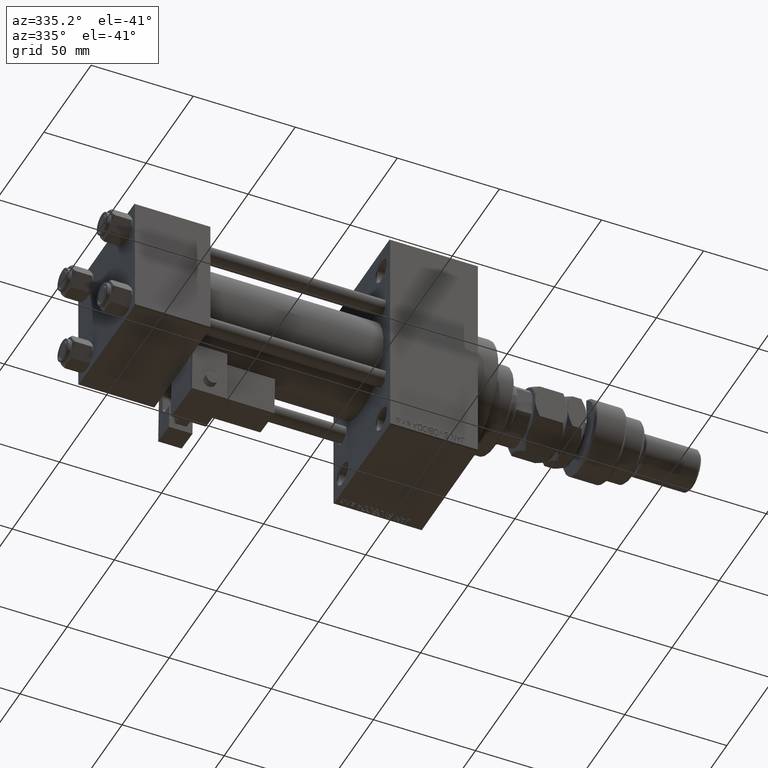
[diagram: clean part render]
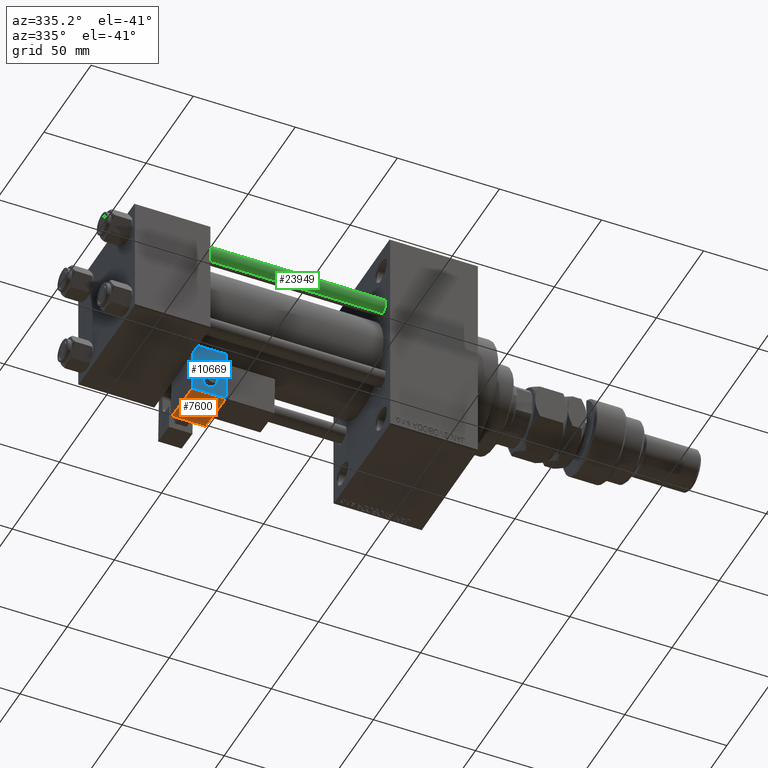
[diagram: same view with three faces highlighted in distinct colors, each labeled with its STEP entity id]
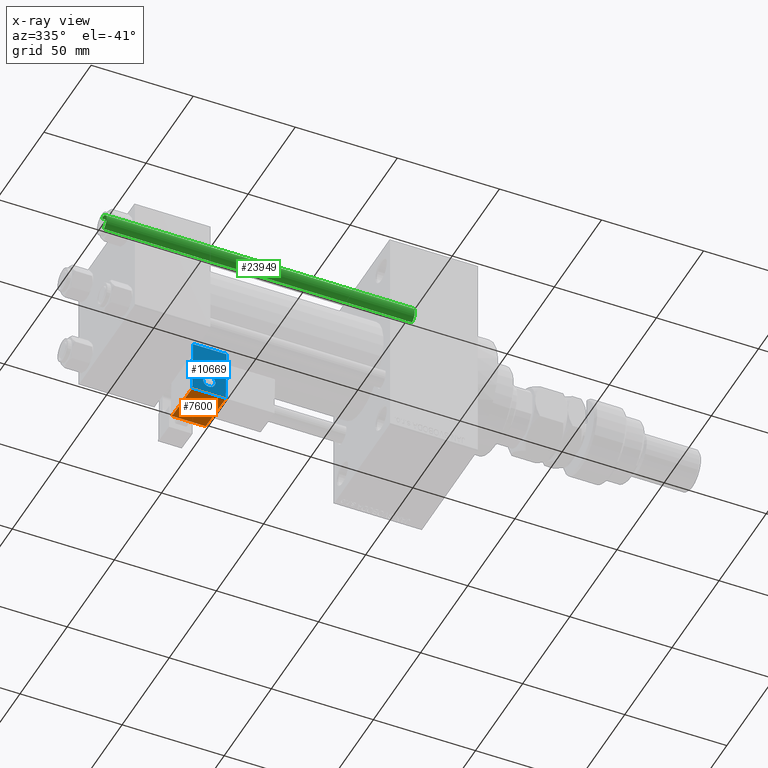
[diagram: x-ray of the same camera — body ghosted, the three highlighted faces saturated]
A machine part, auxiliary view with three faces highlighted in distinct colors.
The next image is the same camera in x-ray (body ghosted, the three faces saturated) — at least one of them is partly hidden behind the body in this view.
Their STEP definitions:

[orange] entity #7600 — the highlighted planar face has unit normal (0, -0.0353, 0.9994).
#1570 = CARTESIAN_POINT ( 'NONE',  ( 8.750000000000003553, -35.75000000000000000, -1.000000000000000222 ) ) ;
#2412 = DIRECTION ( 'NONE',  ( -1.000000000000000000, -0.000000000000000000, 0.000000000000000000 ) ) ;
#7600 = ADVANCED_FACE ( 'NONE', ( #22303 ), #47958, .F. ) ;
#7675 = VERTEX_POINT ( 'NONE', #35253 ) ;
#11437 = CARTESIAN_POINT ( 'NONE',  ( 8.750000000000003553, -14.24999999999999822, -1.000000000000000222 ) ) ;
#12633 = VECTOR ( 'NONE', #31619, 1000.000000000000000 ) ;
#13449 = DIRECTION ( 'NONE',  ( 0.000000000000000000, 0.000000000000000000, 1.000000000000000000 ) ) ;
#13723 = DIRECTION ( 'NONE',  ( 1.000000000000000000, 0.000000000000000000, -0.000000000000000000 ) ) ;
#16734 = VERTEX_POINT ( 'NONE', #24431 ) ;
#19294 = VECTOR ( 'NONE', #41111, 1000.000000000000000 ) ;
#22303 = FACE_OUTER_BOUND ( 'NONE', #46176, .T. ) ;
#22335 = LINE ( 'NONE', #11437, #34475 ) ;
#22376 = CARTESIAN_POINT ( 'NONE',  ( 8.250000000000003553, -14.24999999999999822, -1.000000000000000222 ) ) ;
#23070 = EDGE_CURVE ( 'NONE', #7675, #23619, #49366, .T. ) ;
#23238 = ORIENTED_EDGE ( 'NONE', *, *, #46776, .T. ) ;
#23619 = VERTEX_POINT ( 'NONE', #26828 ) ;
#24431 = CARTESIAN_POINT ( 'NONE',  ( -8.250000000000003553, -14.24999999999999822, -1.000000000000000222 ) ) ;
#26828 = CARTESIAN_POINT ( 'NONE',  ( -8.250000000000003553, -35.25000000000000000, -1.000000000000000222 ) ) ;
#26934 = LINE ( 'NONE', #52614, #12633 ) ;
#27102 = ORIENTED_EDGE ( 'NONE', *, *, #23070, .T. ) ;
#28665 = CARTESIAN_POINT ( 'NONE',  ( -8.250000000000003553, -35.75000000000000000, -1.000000000000000222 ) ) ;
#28792 = ORIENTED_EDGE ( 'NONE', *, *, #54589, .T. ) ;
#30874 = DIRECTION ( 'NONE',  ( 1.000000000000000000, -0.000000000000000000, 0.000000000000000000 ) ) ;
#31619 = DIRECTION ( 'NONE',  ( -0.000000000000000000, -1.000000000000000000, -0.000000000000000000 ) ) ;
#32216 = VERTEX_POINT ( 'NONE', #22376 ) ;
#34475 = VECTOR ( 'NONE', #30874, 1000.000000000000000 ) ;
#35253 = CARTESIAN_POINT ( 'NONE',  ( 8.250000000000003553, -35.25000000000000000, -1.000000000000000222 ) ) ;
#37518 = LINE ( 'NONE', #28665, #19294 ) ;
#39946 = EDGE_CURVE ( 'NONE', #23619, #16734, #37518, .T. ) ;
#41111 = DIRECTION ( 'NONE',  ( -0.000000000000000000, 1.000000000000000000, 0.000000000000000000 ) ) ;
#44407 = CARTESIAN_POINT ( 'NONE',  ( 8.750000000000003553, -35.25000000000000000, -1.000000000000000222 ) ) ;
#44744 = VECTOR ( 'NONE', #2412, 1000.000000000000000 ) ;
#46176 = EDGE_LOOP ( 'NONE', ( #23238, #28792, #27102, #53325 ) ) ;
#46776 = EDGE_CURVE ( 'NONE', #16734, #32216, #22335, .T. ) ;
#47958 = PLANE ( 'NONE',  #53799 ) ;
#49366 = LINE ( 'NONE', #44407, #44744 ) ;
#52614 = CARTESIAN_POINT ( 'NONE',  ( 8.250000000000003553, -35.75000000000000000, -1.000000000000000222 ) ) ;
#53325 = ORIENTED_EDGE ( 'NONE', *, *, #39946, .T. ) ;
#53799 = AXIS2_PLACEMENT_3D ( 'NONE', #1570, #13449, #13723 ) ;
#54589 = EDGE_CURVE ( 'NONE', #32216, #7675, #26934, .T. ) ;

[blue] entity #10669 — the highlighted planar face has unit normal (0, 0.9994, 0.0353).
#502 = EDGE_CURVE ( 'NONE', #35064, #4553, #44780, .T. ) ;
#658 = DIRECTION ( 'NONE',  ( 0.000000000000000000, 0.000000000000000000, 1.000000000000000000 ) ) ;
#1210 = CARTESIAN_POINT ( 'NONE',  ( -4.336808689942017736E-16, -35.75000000000000000, 6.000000000000001776 ) ) ;
#1311 = AXIS2_PLACEMENT_3D ( 'NONE', #48183, #52889, #27475 ) ;
#2476 = DIRECTION ( 'NONE',  ( -1.000000000000000000, 0.000000000000000000, 1.982541115402065110E-16 ) ) ;
#2621 = VECTOR ( 'NONE', #2476, 1000.000000000000000 ) ;
#3100 = LINE ( 'NONE', #24656, #7968 ) ;
#3782 = AXIS2_PLACEMENT_3D ( 'NONE', #6642, #15213, #36465 ) ;
#4504 = EDGE_CURVE ( 'NONE', #24763, #34425, #5803, .T. ) ;
#4553 = VERTEX_POINT ( 'NONE', #7691 ) ;
#5803 = LINE ( 'NONE', #14919, #2621 ) ;
#6036 = EDGE_CURVE ( 'NONE', #34425, #24817, #3100, .T. ) ;
#6270 = DIRECTION ( 'NONE',  ( -1.334402673828313339E-16, 0.000000000000000000, 1.000000000000000000 ) ) ;
#6642 = CARTESIAN_POINT ( 'NONE',  ( 0.000000000000000000, -35.75000000000000000, 0.000000000000000000 ) ) ;
#7691 = CARTESIAN_POINT ( 'NONE',  ( -6.628682924999581145E-17, -35.75000000000000000, 3.000000000000001776 ) ) ;
#7968 = VECTOR ( 'NONE', #41497, 1000.000000000000000 ) ;
#9237 = ORIENTED_EDGE ( 'NONE', *, *, #27266, .T. ) ;
#9508 = VECTOR ( 'NONE', #48296, 1000.000000000000000 ) ;
#9643 = CARTESIAN_POINT ( 'NONE',  ( 0.000000000000000000, -35.75000000000000000, -0.5000000000000002220 ) ) ;
#10669 = ADVANCED_FACE ( 'NONE', ( #19644, #44216 ), #39530, .F. ) ;
#11061 = ORIENTED_EDGE ( 'NONE', *, *, #49687, .T. ) ;
#11280 = EDGE_LOOP ( 'NONE', ( #37640, #18785 ) ) ;
#14919 = CARTESIAN_POINT ( 'NONE',  ( 4.857225732735059864E-15, -35.75000000000000000, 24.50000000000000000 ) ) ;
#15213 = DIRECTION ( 'NONE',  ( 0.000000000000000000, 1.000000000000000000, 0.000000000000000000 ) ) ;
#16658 = EDGE_CURVE ( 'NONE', #4553, #35064, #37462, .T. ) ;
#17798 = DIRECTION ( 'NONE',  ( -0.000000000000000000, -1.000000000000000000, -0.000000000000000000 ) ) ;
#18785 = ORIENTED_EDGE ( 'NONE', *, *, #16658, .F. ) ;
#19054 = VERTEX_POINT ( 'NONE', #52812 ) ;
#19644 = FACE_OUTER_BOUND ( 'NONE', #45760, .T. ) ;
#24656 = CARTESIAN_POINT ( 'NONE',  ( -8.250000000000003553, -35.75000000000000000, 1.100882205908358788E-15 ) ) ;
#24763 = VERTEX_POINT ( 'NONE', #47385 ) ;
#24817 = VERTEX_POINT ( 'NONE', #32432 ) ;
#27266 = EDGE_CURVE ( 'NONE', #24817, #19054, #47485, .T. ) ;
#27475 = DIRECTION ( 'NONE',  ( 0.000000000000000000, 0.000000000000000000, 1.000000000000000000 ) ) ;
#28905 = AXIS2_PLACEMENT_3D ( 'NONE', #1210, #17798, #658 ) ;
#32432 = CARTESIAN_POINT ( 'NONE',  ( -8.250000000000003553, -35.75000000000000000, -0.5000000000000002220 ) ) ;
#32480 = LINE ( 'NONE', #39973, #33686 ) ;
#33217 = CARTESIAN_POINT ( 'NONE',  ( -4.336808689942017736E-16, -35.75000000000000000, 9.000000000000001776 ) ) ;
#33686 = VECTOR ( 'NONE', #6270, 1000.000000000000000 ) ;
#34425 = VERTEX_POINT ( 'NONE', #49109 ) ;
#35064 = VERTEX_POINT ( 'NONE', #33217 ) ;
#36465 = DIRECTION ( 'NONE',  ( 0.000000000000000000, -0.000000000000000000, 1.000000000000000000 ) ) ;
#37462 = CIRCLE ( 'NONE', #1311, 2.999999999999999112 ) ;
#37640 = ORIENTED_EDGE ( 'NONE', *, *, #502, .F. ) ;
#37834 = ORIENTED_EDGE ( 'NONE', *, *, #6036, .T. ) ;
#39530 = PLANE ( 'NONE',  #3782 ) ;
#39973 = CARTESIAN_POINT ( 'NONE',  ( 8.250000000000003553, -35.75000000000000000, 1.100882205908358986E-15 ) ) ;
#41497 = DIRECTION ( 'NONE',  ( -1.334402673828313093E-16, 0.000000000000000000, -1.000000000000000000 ) ) ;
#43484 = ORIENTED_EDGE ( 'NONE', *, *, #4504, .T. ) ;
#44216 = FACE_BOUND ( 'NONE', #11280, .T. ) ;
#44780 = CIRCLE ( 'NONE', #28905, 2.999999999999999112 ) ;
#45760 = EDGE_LOOP ( 'NONE', ( #43484, #37834, #9237, #11061 ) ) ;
#47385 = CARTESIAN_POINT ( 'NONE',  ( 8.250000000000000000, -35.75000000000000000, 24.50000000000000000 ) ) ;
#47485 = LINE ( 'NONE', #9643, #9508 ) ;
#48183 = CARTESIAN_POINT ( 'NONE',  ( -4.336808689942017736E-16, -35.75000000000000000, 6.000000000000001776 ) ) ;
#48296 = DIRECTION ( 'NONE',  ( 1.000000000000000000, 0.000000000000000000, 0.000000000000000000 ) ) ;
#49109 = CARTESIAN_POINT ( 'NONE',  ( -8.250000000000000000, -35.75000000000000000, 24.50000000000000355 ) ) ;
#49687 = EDGE_CURVE ( 'NONE', #19054, #24763, #32480, .T. ) ;
#52812 = CARTESIAN_POINT ( 'NONE',  ( 8.250000000000003553, -35.75000000000000000, -0.5000000000000002220 ) ) ;
#52889 = DIRECTION ( 'NONE',  ( -0.000000000000000000, -1.000000000000000000, -0.000000000000000000 ) ) ;

[green] entity #23949 — the highlighted cylindrical surface (edge-blend (fillet) strip) has radius 4 mm, axis along (1, 0, 0).
#1381 = EDGE_CURVE ( 'NONE', #51756, #15388, #7783, .T. ) ;
#3311 = EDGE_CURVE ( 'NONE', #9487, #27802, #49824, .T. ) ;
#3358 = VECTOR ( 'NONE', #36536, 1000.000000000000000 ) ;
#3577 = CARTESIAN_POINT ( 'NONE',  ( 0.000000000000000000, 0.000000000000000000, 152.0000000000000000 ) ) ;
#4979 = CIRCLE ( 'NONE', #37612, 4.000000000000000000 ) ;
#7783 = LINE ( 'NONE', #40959, #3358 ) ;
#9326 = CARTESIAN_POINT ( 'NONE',  ( 0.000000000000000000, 0.000000000000000000, 0.5000000000000281997 ) ) ;
#9487 = VERTEX_POINT ( 'NONE', #40507 ) ;
#11967 = CARTESIAN_POINT ( 'NONE',  ( -4.000000000000000000, 0.000000000000000000, 152.0000000000000000 ) ) ;
#12124 = FACE_OUTER_BOUND ( 'NONE', #47982, .T. ) ;
#13250 = DIRECTION ( 'NONE',  ( 0.000000000000000000, 0.000000000000000000, -1.000000000000000000 ) ) ;
#13478 = CARTESIAN_POINT ( 'NONE',  ( 4.000000000000000000, 4.898587196589412829E-16, 0.5000000000000281997 ) ) ;
#13793 = DIRECTION ( 'NONE',  ( 1.000000000000000000, 0.000000000000000000, 0.000000000000000000 ) ) ;
#15388 = VERTEX_POINT ( 'NONE', #13478 ) ;
#16709 = ORIENTED_EDGE ( 'NONE', *, *, #21017, .T. ) ;
#18795 = ORIENTED_EDGE ( 'NONE', *, *, #1381, .T. ) ;
#21017 = EDGE_CURVE ( 'NONE', #9487, #51756, #4979, .T. ) ;
#23949 = ADVANCED_FACE ( 'NONE', ( #12124 ), #54397, .T. ) ;
#27802 = VERTEX_POINT ( 'NONE', #37402 ) ;
#29471 = ORIENTED_EDGE ( 'NONE', *, *, #3311, .F. ) ;
#32023 = AXIS2_PLACEMENT_3D ( 'NONE', #9326, #33928, #41682 ) ;
#33605 = CARTESIAN_POINT ( 'NONE',  ( 4.000000000000000000, 4.898587196589412829E-16, 151.5000000000000284 ) ) ;
#33928 = DIRECTION ( 'NONE',  ( -0.000000000000000000, -0.000000000000000000, 1.000000000000000000 ) ) ;
#35050 = CARTESIAN_POINT ( 'NONE',  ( 0.000000000000000000, 0.000000000000000000, 151.5000000000000284 ) ) ;
#36536 = DIRECTION ( 'NONE',  ( -0.000000000000000000, -0.000000000000000000, -1.000000000000000000 ) ) ;
#37289 = DIRECTION ( 'NONE',  ( -0.000000000000000000, -0.000000000000000000, -1.000000000000000000 ) ) ;
#37402 = CARTESIAN_POINT ( 'NONE',  ( -4.000000000000000000, 0.000000000000000000, 0.5000000000000281997 ) ) ;
#37612 = AXIS2_PLACEMENT_3D ( 'NONE', #35050, #13250, #13793 ) ;
#38192 = CIRCLE ( 'NONE', #32023, 4.000000000000000000 ) ;
#40507 = CARTESIAN_POINT ( 'NONE',  ( -4.000000000000000000, 0.000000000000000000, 151.5000000000000284 ) ) ;
#40959 = CARTESIAN_POINT ( 'NONE',  ( 4.000000000000000000, 4.898587196589412829E-16, 152.0000000000000000 ) ) ;
#41682 = DIRECTION ( 'NONE',  ( 1.000000000000000000, 0.000000000000000000, 0.000000000000000000 ) ) ;
#42070 = DIRECTION ( 'NONE',  ( -0.000000000000000000, -0.000000000000000000, -1.000000000000000000 ) ) ;
#45793 = VECTOR ( 'NONE', #42070, 1000.000000000000000 ) ;
#46646 = DIRECTION ( 'NONE',  ( -1.000000000000000000, 0.000000000000000000, 0.000000000000000000 ) ) ;
#47906 = ORIENTED_EDGE ( 'NONE', *, *, #51368, .T. ) ;
#47982 = EDGE_LOOP ( 'NONE', ( #16709, #18795, #47906, #29471 ) ) ;
#48314 = AXIS2_PLACEMENT_3D ( 'NONE', #3577, #37289, #46646 ) ;
#49824 = LINE ( 'NONE', #11967, #45793 ) ;
#51368 = EDGE_CURVE ( 'NONE', #15388, #27802, #38192, .T. ) ;
#51756 = VERTEX_POINT ( 'NONE', #33605 ) ;
#54397 = CYLINDRICAL_SURFACE ( 'NONE', #48314, 4.000000000000000000 ) ;